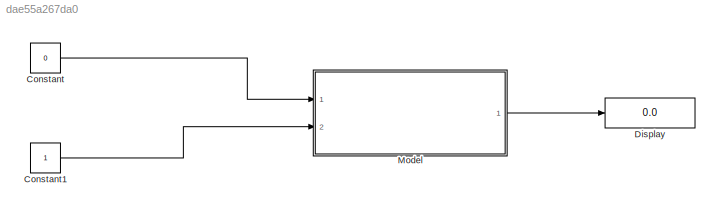
MODEL slx_dae55a267da0
KIND model
CONFIG AbsTol = auto
CONFIG EnableMultiTasking = on
CONFIG FixedStep = 1e-3
CONFIG MaxStep = auto
CONFIG MinStep = auto
CONFIG RelTol = 1e-3
CONFIG SampleTimeConstraint = Unconstrained
CONFIG Solver = FixedStepAuto
CONFIG SolverName = FixedStepAuto
CONFIG StartTime = 0.0
CONFIG StopTime = 1
BLOCK [Constant] Constant
  OutDataTypeStr = boolean
  Value = 0
BLOCK [Constant] Constant1
BLOCK [Display] Display
  Decimation = 1
  Ports = [1]
BLOCK [ModelReference] Model
  ModelNameDialog = UpdatePulseTime.slx
  ModelReferenceVersion = 1.13
  Ports = [2, 1]
LINE Constant1:1 -> Model:2
LINE Constant:1 -> Model:1
LINE Model:1 -> Display:1
